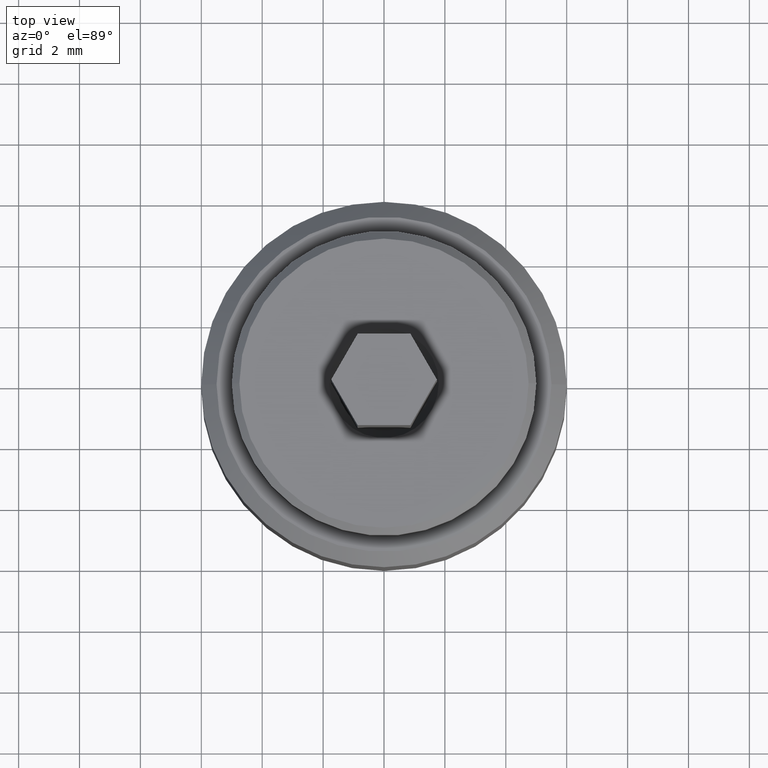
[diagram: clean part render]
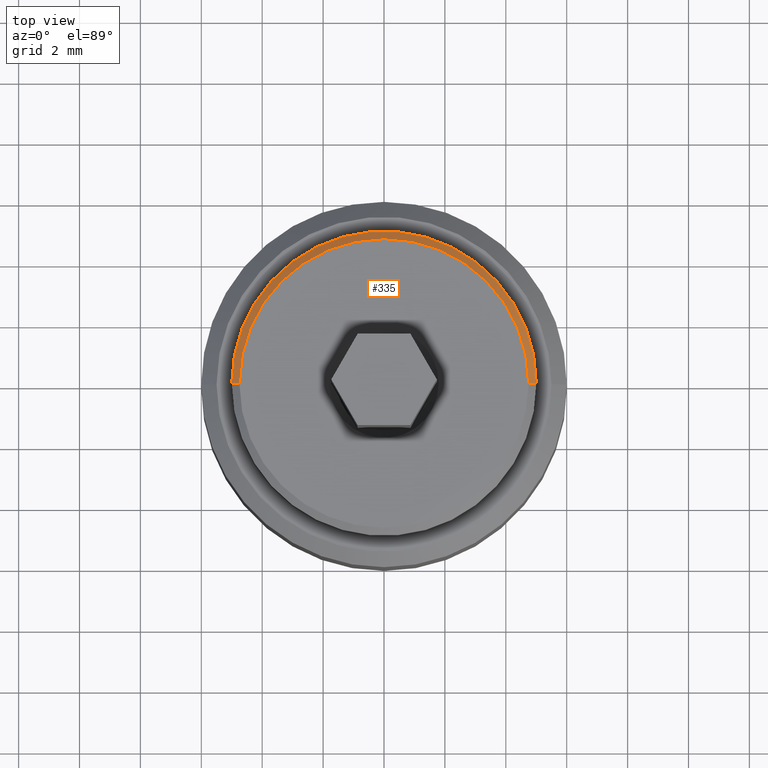
[diagram: same view with one face highlighted and labeled with its STEP entity id]
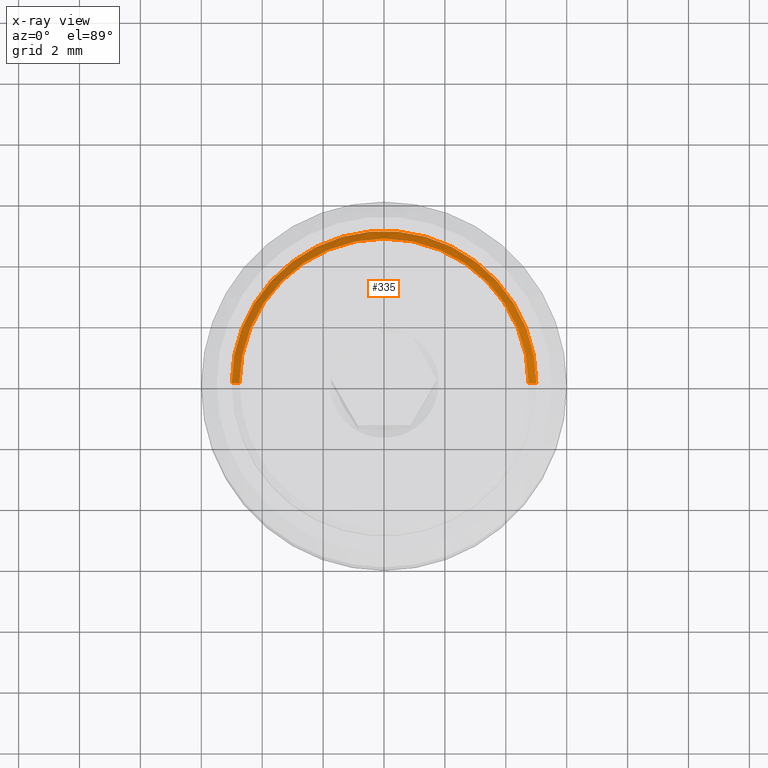
[diagram: x-ray of the same camera — body ghosted, the highlighted face saturated]
A machine part, top view. The second image highlights one B-rep face of the part: STEP entity #335.
The next image is the same camera in x-ray: the body ghosted, the highlighted face saturated — about 0% of this face is hidden behind the body in this view.
In plain terms, the highlighted conical surface has half-angle 45 deg.
Its self-contained STEP definition (entity closure, byte-faithful):
#21 = ORIENTED_EDGE ( 'NONE', *, *, #480, .T. ) ;
#31 = DIRECTION ( 'NONE',  ( 0.7071067811865451302, 8.659560562354904508E-17, -0.7071067811865500152 ) ) ;
#54 = CARTESIAN_POINT ( 'NONE',  ( -4.750000000000005329, 0.000000000000000000, 10.00000000000000178 ) ) ;
#59 = CIRCLE ( 'NONE', #622, 4.750000000000007105 ) ;
#64 = DIRECTION ( 'NONE',  ( 1.000000000000000000, 0.000000000000000000, 0.000000000000000000 ) ) ;
#87 = CARTESIAN_POINT ( 'NONE',  ( 0.000000000000000000, 0.000000000000000000, 9.750000000000005329 ) ) ;
#90 = VERTEX_POINT ( 'NONE', #955 ) ;
#94 = VERTEX_POINT ( 'NONE', #268 ) ;
#140 = VERTEX_POINT ( 'NONE', #837 ) ;
#144 = ORIENTED_EDGE ( 'NONE', *, *, #946, .F. ) ;
#147 = DIRECTION ( 'NONE',  ( -1.000000000000000000, 0.000000000000000000, 0.000000000000000000 ) ) ;
#215 = DIRECTION ( 'NONE',  ( 0.000000000000000000, 0.000000000000000000, -1.000000000000000000 ) ) ;
#268 = CARTESIAN_POINT ( 'NONE',  ( 5.000000000000000000, 0.000000000000000000, 9.750000000000005329 ) ) ;
#282 = DIRECTION ( 'NONE',  ( -0.7071067811865451302, 0.000000000000000000, -0.7071067811865500152 ) ) ;
#335 = ADVANCED_FACE ( 'NONE', ( #467 ), #803, .T. ) ;
#369 = AXIS2_PLACEMENT_3D ( 'NONE', #682, #764, #147 ) ;
#397 = ORIENTED_EDGE ( 'NONE', *, *, #741, .F. ) ;
#441 = VERTEX_POINT ( 'NONE', #794 ) ;
#467 = FACE_OUTER_BOUND ( 'NONE', #527, .T. ) ;
#475 = ORIENTED_EDGE ( 'NONE', *, *, #967, .F. ) ;
#480 = EDGE_CURVE ( 'NONE', #90, #94, #938, .T. ) ;
#482 = CARTESIAN_POINT ( 'NONE',  ( 4.750000000000005329, 5.817072295949934328E-16, 10.00000000000000178 ) ) ;
#527 = EDGE_LOOP ( 'NONE', ( #475, #21, #144, #397 ) ) ;
#559 = AXIS2_PLACEMENT_3D ( 'NONE', #87, #215, #973 ) ;
#581 = VECTOR ( 'NONE', #31, 1000.000000000000114 ) ;
#592 = LINE ( 'NONE', #54, #710 ) ;
#604 = DIRECTION ( 'NONE',  ( 0.000000000000000000, 0.000000000000000000, 1.000000000000000000 ) ) ;
#622 = AXIS2_PLACEMENT_3D ( 'NONE', #755, #604, #64 ) ;
#682 = CARTESIAN_POINT ( 'NONE',  ( 0.000000000000000000, 0.000000000000000000, 10.00000000000000178 ) ) ;
#710 = VECTOR ( 'NONE', #282, 1000.000000000000114 ) ;
#741 = EDGE_CURVE ( 'NONE', #140, #441, #592, .T. ) ;
#755 = CARTESIAN_POINT ( 'NONE',  ( 0.000000000000000000, 0.000000000000000000, 10.00000000000000000 ) ) ;
#764 = DIRECTION ( 'NONE',  ( 0.000000000000000000, 0.000000000000000000, -1.000000000000000000 ) ) ;
#794 = CARTESIAN_POINT ( 'NONE',  ( -5.000000000000000000, 6.123233995736765296E-16, 9.750000000000005329 ) ) ;
#803 = CONICAL_SURFACE ( 'NONE', #369, 4.750000000000005329, 0.7853981633974447263 ) ;
#837 = CARTESIAN_POINT ( 'NONE',  ( -4.750000000000007105, 0.000000000000000000, 10.00000000000000000 ) ) ;
#938 = LINE ( 'NONE', #482, #581 ) ;
#946 = EDGE_CURVE ( 'NONE', #441, #94, #987, .T. ) ;
#955 = CARTESIAN_POINT ( 'NONE',  ( 4.750000000000007105, 5.970153145843351291E-16, 10.00000000000000000 ) ) ;
#967 = EDGE_CURVE ( 'NONE', #90, #140, #59, .T. ) ;
#973 = DIRECTION ( 'NONE',  ( 1.000000000000000000, 0.000000000000000000, 0.000000000000000000 ) ) ;
#987 = CIRCLE ( 'NONE', #559, 5.000000000000000000 ) ;